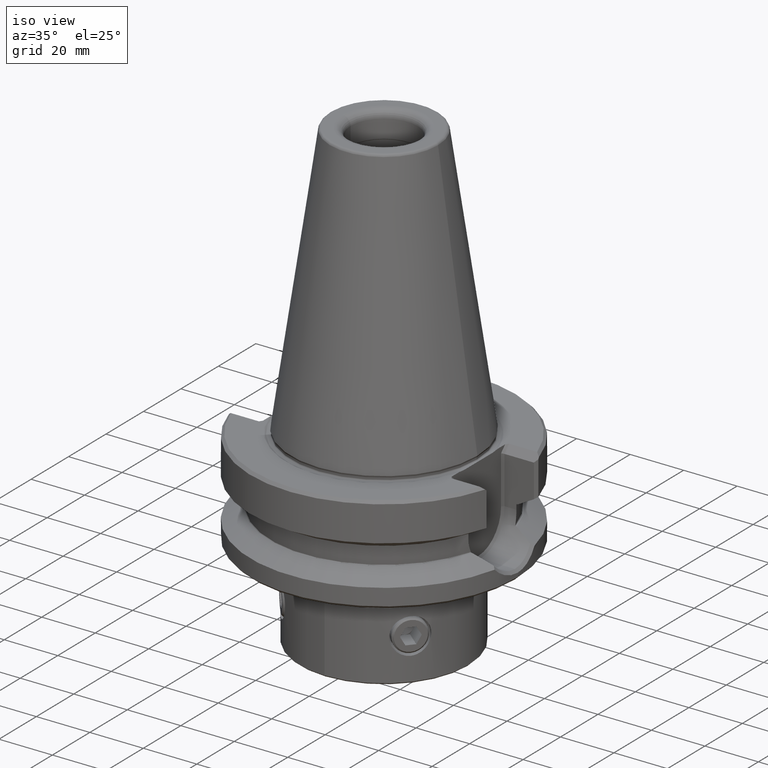
[diagram: clean part render]
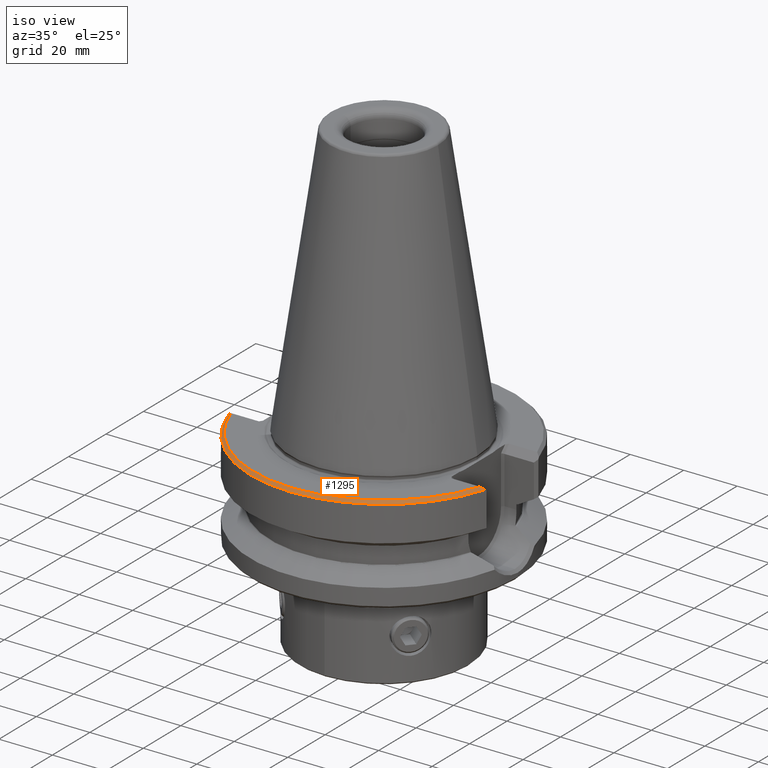
[diagram: same view with one face highlighted and labeled with its STEP entity id]
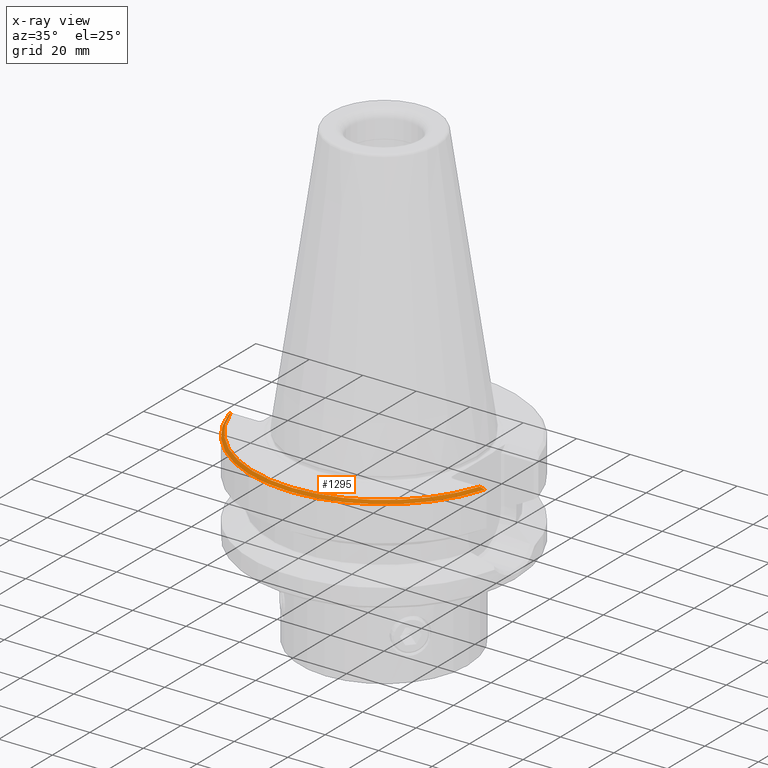
[diagram: x-ray of the same camera — body ghosted, the highlighted face saturated]
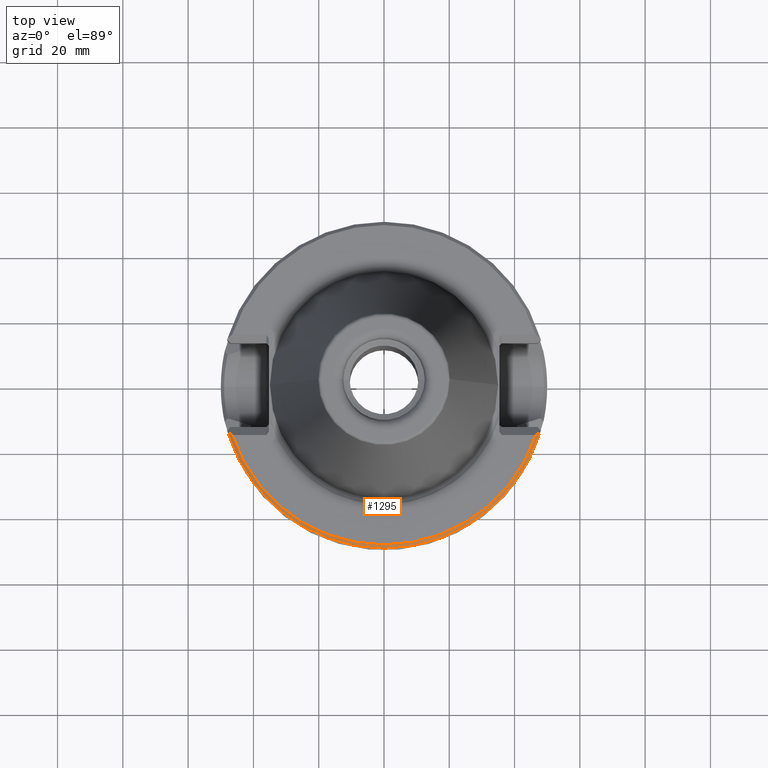
[diagram: same view with one face highlighted and labeled with its STEP entity id]
A machine part, iso view. The second image highlights one B-rep face of the part: STEP entity #1295.
The next image is the same camera in x-ray: the body ghosted, the highlighted face saturated — about 0% of this face is hidden behind the body in this view.
A second angle (top view) of the same face is appended — the face is thin or edge-on in the first view.
In plain terms, the highlighted conical surface has half-angle 45 deg.
Its self-contained STEP definition (entity closure, byte-faithful):
#1295=ADVANCED_FACE('NONE',(#3757),#3758,.T.);
#1517=VERTEX_POINT('NONE',#4003);
#1693=EDGE_CURVE('NONE',#2199,#1517,#4192,.F.);
#2075=EDGE_CURVE('NONE',#2379,#2893,#4624,.T.);
#2199=VERTEX_POINT('NONE',#4763);
#2379=VERTEX_POINT('NONE',#4959);
#2663=EDGE_CURVE('NONE',#2893,#2199,#5278,.F.);
#2893=VERTEX_POINT('NONE',#5539);
#3615=EDGE_CURVE('NONE',#1517,#2379,#6335,.T.);
#3757=FACE_OUTER_BOUND('',#6491,.T.);
#3758=CONICAL_SURFACE('',#6492,49.0,0.785398163397454);
#4003=CARTESIAN_POINT('',(47.8965291018044,-14.35,-2.49999999999996));
#4192=B_SPLINE_CURVE_WITH_KNOTS('',2,(#7238,#7239,#7240),.UNSPECIFIED.,.F.,.F.,(3,3),(2.40310880257418,4.36611097571235),.UNSPECIFIED.);
#4624=B_SPLINE_CURVE_WITH_KNOTS('',2,(#8047,#8048,#8049),.UNSPECIFIED.,.F.,.F.,(3,3),(2.403108802574,4.36611097571217),.UNSPECIFIED.);
#4763=CARTESIAN_POINT('',(46.5336168807025,-15.35,-1.49999999999999));
#4959=CARTESIAN_POINT('',(-47.8965291018044,-14.35,-2.49999999999997));
#5278=CIRCLE('',#9353,49.0);
#5539=CARTESIAN_POINT('',(-46.5336168807025,-15.35,-1.49999999999999));
#6335=CIRCLE('',#11309,50.0);
#6491=EDGE_LOOP('',(#11497,#11498,#11499,#11500));
#6492=AXIS2_PLACEMENT_3D('',#11501,#11502,#11503);
#7238=CARTESIAN_POINT('',(47.8965291017988,-14.3500000000042,-2.49999999999576));
#7239=CARTESIAN_POINT('',(47.2150729912502,-14.8572165101906,-1.99278348980944));
#7240=CARTESIAN_POINT('',(46.5336168807016,-15.3500000000007,-1.49999999999931));
#8047=CARTESIAN_POINT('',(-47.8965291017988,-14.3500000000042,-2.49999999999577));
#8048=CARTESIAN_POINT('',(-47.2150729912502,-14.8572165101906,-1.99278348980943));
#8049=CARTESIAN_POINT('',(-46.5336168807016,-15.3500000000007,-1.49999999999931));
#9353=AXIS2_PLACEMENT_3D('',#13336,#13337,#13338);
#11309=AXIS2_PLACEMENT_3D('',#14542,#14543,#14544);
#11497=ORIENTED_EDGE('',*,*,#2075,.F.);
#11498=ORIENTED_EDGE('',*,*,#3615,.F.);
#11499=ORIENTED_EDGE('',*,*,#1693,.F.);
#11500=ORIENTED_EDGE('',*,*,#2663,.F.);
#11501=CARTESIAN_POINT('',(2.08166817117216E-017,-1.87350135405494E-016,-1.49999999999999));
#11502=DIRECTION('',(1.38777878078145E-017,-1.2490009027033E-016,-1.0));
#11503=DIRECTION('',(1.0,1.54074395550979E-032,1.38777878078145E-017));
#13336=CARTESIAN_POINT('',(2.08166817117216E-017,-1.87350135405494E-016,-1.49999999999999));
#13337=DIRECTION('',(1.38777878078145E-017,-1.2490009027033E-016,-1.0));
#13338=DIRECTION('',(1.0,1.54074395550979E-032,1.38777878078145E-017));
#14542=CARTESIAN_POINT('',(3.46944695195357E-017,-3.12250225675821E-016,-2.49999999999997));
#14543=DIRECTION('',(1.38777878078145E-017,-1.2490009027033E-016,-1.0));
#14544=DIRECTION('',(-1.0,-1.54074395550979E-032,-1.38777878078145E-017));